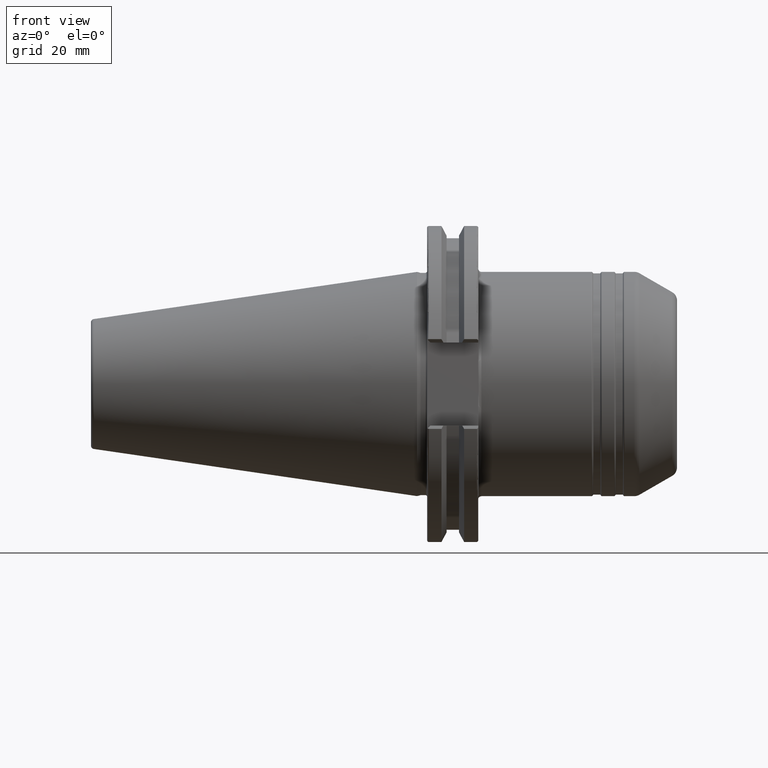
[diagram: clean part render]
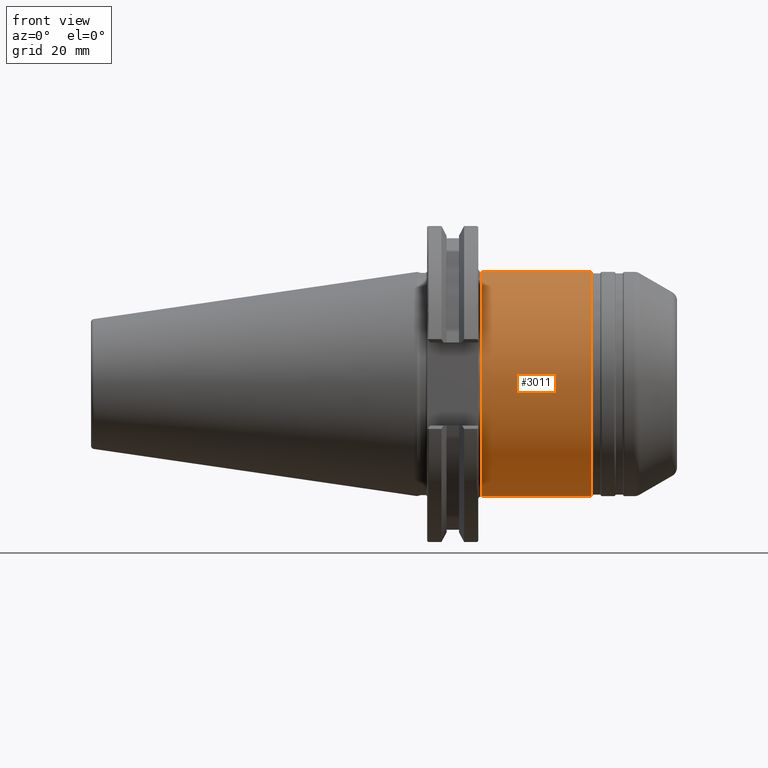
[diagram: same view with one face highlighted and labeled with its STEP entity id]
A machine part, front view. The second image highlights one B-rep face of the part: STEP entity #3011.
In plain terms, the highlighted cylindrical surface (partial cylindrical patch) has radius 34.95 mm, axis along (1, 0, 0).
Its self-contained STEP definition (entity closure, byte-faithful):
#694=DIRECTION('',(-1.E0,0.E0,0.E0));
#695=VECTOR('',#694,3.431491470389E1);
#696=CARTESIAN_POINT('',(5.436491470389E1,0.E0,-3.495E1));
#697=LINE('',#696,#695);
#698=DIRECTION('',(-1.E0,0.E0,0.E0));
#699=VECTOR('',#698,3.431491470389E1);
#700=CARTESIAN_POINT('',(5.436491470389E1,0.E0,3.495E1));
#701=LINE('',#700,#699);
#702=CARTESIAN_POINT('',(5.436491470389E1,0.E0,0.E0));
#703=DIRECTION('',(-1.E0,0.E0,0.E0));
#704=DIRECTION('',(0.E0,0.E0,-1.E0));
#705=AXIS2_PLACEMENT_3D('',#702,#703,#704);
#712=CARTESIAN_POINT('',(2.005E1,0.E0,0.E0));
#713=DIRECTION('',(-1.E0,0.E0,0.E0));
#714=DIRECTION('',(0.E0,0.E0,-1.E0));
#715=AXIS2_PLACEMENT_3D('',#712,#713,#714);
#1930=CARTESIAN_POINT('',(5.436491470389E1,0.E0,-3.495E1));
#1931=VERTEX_POINT('',#1930);
#1932=CARTESIAN_POINT('',(2.005E1,0.E0,-3.495E1));
#1933=VERTEX_POINT('',#1932);
#1980=CARTESIAN_POINT('',(5.436491470389E1,0.E0,3.495E1));
#1981=VERTEX_POINT('',#1980);
#1982=CARTESIAN_POINT('',(2.005E1,0.E0,3.495E1));
#1983=VERTEX_POINT('',#1982);
#2999=CARTESIAN_POINT('',(1.59525E1,0.E0,0.E0));
#3000=DIRECTION('',(1.E0,0.E0,0.E0));
#3001=DIRECTION('',(0.E0,0.E0,1.E0));
#3002=AXIS2_PLACEMENT_3D('',#2999,#3000,#3001);
#3003=CYLINDRICAL_SURFACE('',#3002,3.495E1);
#3004=ORIENTED_EDGE('',*,*,#2989,.T.);
#3006=ORIENTED_EDGE('',*,*,#3005,.T.);
#3007=ORIENTED_EDGE('',*,*,#2992,.F.);
#3008=ORIENTED_EDGE('',*,*,#2963,.F.);
#3009=EDGE_LOOP('',(#3004,#3006,#3007,#3008));
#3010=FACE_OUTER_BOUND('',#3009,.F.);
#3011=ADVANCED_FACE('',(#3010),#3003,.T.);
#706=CIRCLE('',#705,3.495E1);
#716=CIRCLE('',#715,3.495E1);
#2963=EDGE_CURVE('',#1931,#1981,#706,.T.);
#2989=EDGE_CURVE('',#1931,#1933,#697,.T.);
#2992=EDGE_CURVE('',#1981,#1983,#701,.T.);
#3005=EDGE_CURVE('',#1933,#1983,#716,.T.);